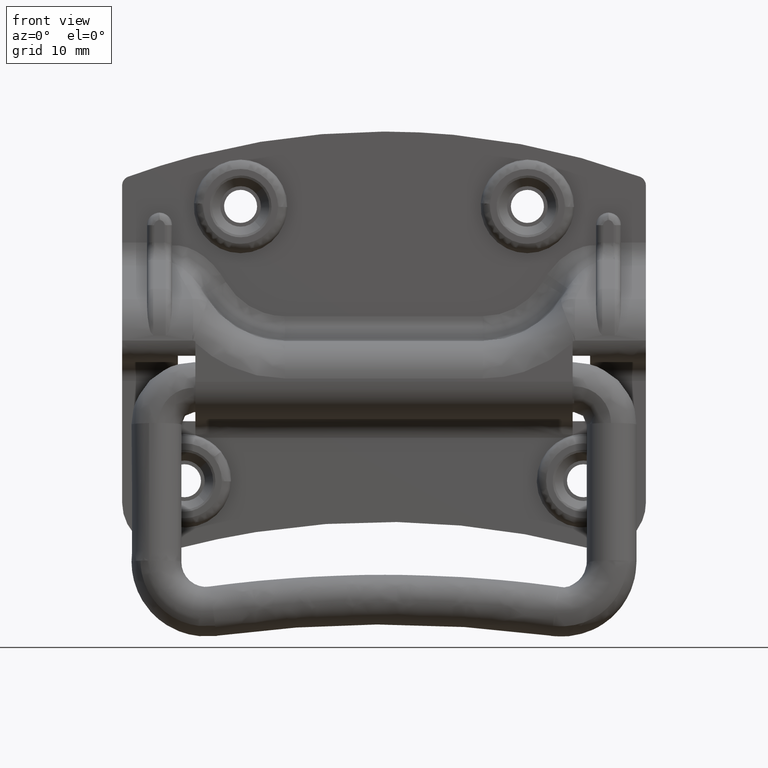
[diagram: clean part render]
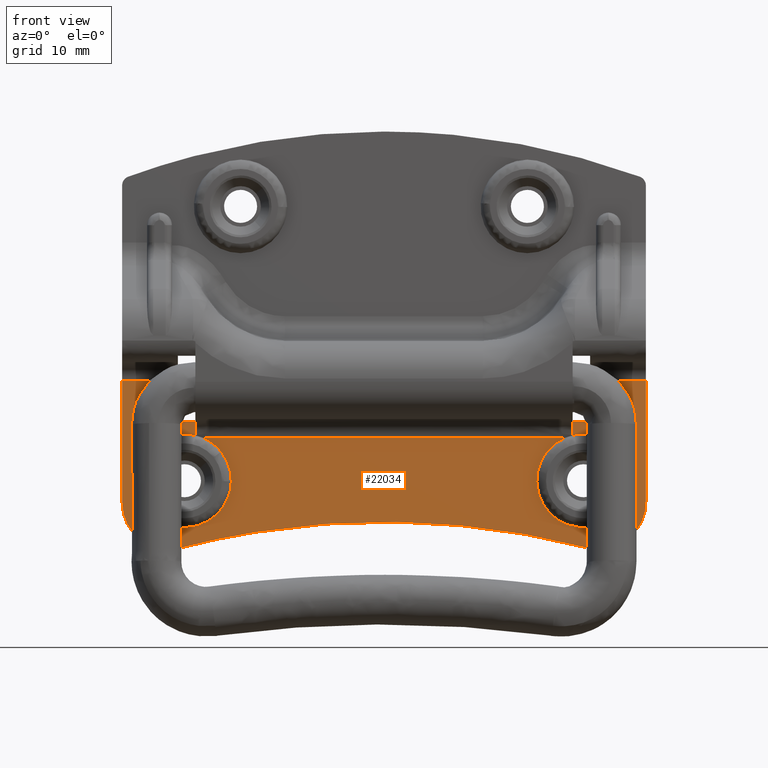
[diagram: same view with one face highlighted and labeled with its STEP entity id]
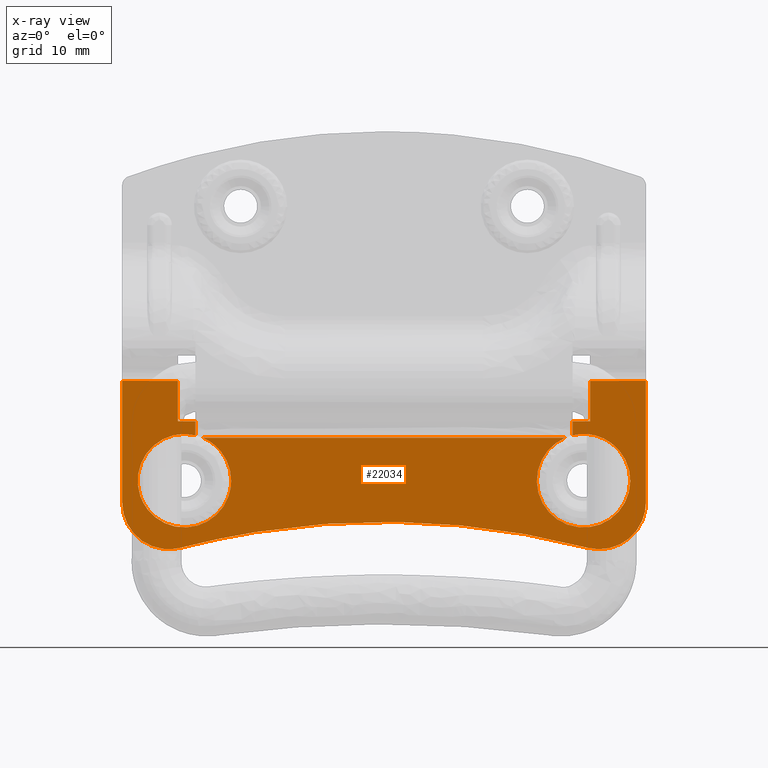
[diagram: x-ray of the same camera — body ghosted, the highlighted face saturated]
A machine part, front view. The second image highlights one B-rep face of the part: STEP entity #22034.
The next image is the same camera in x-ray: the body ghosted, the highlighted face saturated — about 0% of this face is hidden behind the body in this view.
In plain terms, the highlighted face is a freeform B-spline surface patch.
Its self-contained STEP definition (entity closure, byte-faithful):
#7285=CARTESIAN_POINT('',(-26.137685058992840,4.935899998863436,-10.322044941168921));
#7286=VERTEX_POINT('',#7285);
#7297=CARTESIAN_POINT('',(-29.060612308660350,4.935900000000000,-8.100000000000000));
#7298=VERTEX_POINT('',#7297);
#7299=CARTESIAN_POINT('',(-26.137685058992840,4.935899998863436,-10.322044941168921));
#7300=CARTESIAN_POINT('',(-26.450948569587389,4.935899999165022,-9.929387474775977));
#7301=CARTESIAN_POINT('',(-27.319612365203358,4.935899999768425,-9.040697086884704));
#7302=CARTESIAN_POINT('',(-28.385032488189321,4.935900000000430,-8.387428273835941));
#7303=CARTESIAN_POINT('',(-29.060612308660350,4.935900000000000,-8.100000000000000));
#7304=B_SPLINE_CURVE_WITH_KNOTS('',3,(#7299,#7300,#7301,#7302,#7303),.UNSPECIFIED.,.F.,.U.,(4,1,4),(0.000000018771408,1.506945767336172,3.709373404196398),.UNSPECIFIED.);
#7305=EDGE_CURVE('',#7286,#7298,#7304,.T.);
#7307=CARTESIAN_POINT('',(-30.249893012754551,4.935900000000100,-7.707049600251410));
#7308=VERTEX_POINT('',#7307);
#7316=CARTESIAN_POINT('',(-37.918678671612952,4.935900000000000,-19.606434931939660));
#7317=VERTEX_POINT('',#7316);
#7318=CARTESIAN_POINT('',(-30.249893012754551,4.935900000000100,-7.707049600251410));
#7319=CARTESIAN_POINT('',(-30.999703196167609,4.935900000000085,-7.526737837697844));
#7320=CARTESIAN_POINT('',(-32.166330051793608,4.935900000000106,-7.432271600693289));
#7321=CARTESIAN_POINT('',(-33.743659712877971,4.935900000000079,-7.670896851076519));
#7322=CARTESIAN_POINT('',(-34.986042485519192,4.935900000000088,-8.074245012554412));
#7323=CARTESIAN_POINT('',(-36.433341652711427,4.935900000000071,-8.859076490638513));
#7324=CARTESIAN_POINT('',(-37.694290157811700,4.935900000000043,-10.005986989589770));
#7325=CARTESIAN_POINT('',(-38.558382146908009,4.935900000000051,-11.292194271035671));
#7326=CARTESIAN_POINT('',(-39.179951615384532,4.935900000000054,-12.654613487926660));
#7327=CARTESIAN_POINT('',(-39.517041582160907,4.935900000000023,-14.124162959246361));
#7328=CARTESIAN_POINT('',(-39.507690239975943,4.935900000000018,-15.673675223043720));
#7329=CARTESIAN_POINT('',(-39.283425833201377,4.935900000000024,-16.910354094443889));
#7330=CARTESIAN_POINT('',(-38.824393874488237,4.935899999999956,-18.234949854725699));
#7331=CARTESIAN_POINT('',(-38.303647377126197,4.935900000000085,-19.112070853169900));
#7332=CARTESIAN_POINT('',(-37.918678671612952,4.935900000000000,-19.606434931939660));
#7333=B_SPLINE_CURVE_WITH_KNOTS('',3,(#7318,#7319,#7320,#7321,#7322,#7323,#7324,#7325,#7326,#7327,#7328,#7329,#7330,#7331,#7332),.UNSPECIFIED.,.F.,.U.,(4,1,1,1,1,1,1,1,1,1,1,1,4),(0.000000147355433,2.313427370048121,3.470222933412833,4.771562488840157,6.217499376539228,8.386423375454740,9.832269250406212,10.844436513093420,12.868717573107009,14.314677523999700,15.471451309252540,16.628160300210940,18.507857002783918),.UNSPECIFIED.);
#7334=EDGE_CURVE('',#7308,#7317,#7333,.T.);
#7336=CARTESIAN_POINT('',(-24.500592168471432,4.935899998827004,-15.094245299124751));
#7337=VERTEX_POINT('',#7336);
#7338=CARTESIAN_POINT('',(-37.918678671612952,4.935900000000000,-19.606434931939660));
#7339=CARTESIAN_POINT('',(-37.386301512178512,4.935899999782540,-20.291532866655839));
#7340=CARTESIAN_POINT('',(-36.370295805350288,4.935899999444435,-21.210230897292849));
#7341=CARTESIAN_POINT('',(-34.769641669754250,4.935899999038835,-22.015128113912539));
#7342=CARTESIAN_POINT('',(-33.515332053715419,4.935899998773643,-22.379714698490432));
#7343=CARTESIAN_POINT('',(-32.267360230945492,4.935899998552046,-22.528931905498741));
#7344=CARTESIAN_POINT('',(-31.059126724407509,4.935899998376729,-22.474691450165061));
#7345=CARTESIAN_POINT('',(-29.640339402100590,4.935899998217796,-22.174306759415810));
#7346=CARTESIAN_POINT('',(-28.349109719299260,4.935899998130431,-21.611312293335921));
#7347=CARTESIAN_POINT('',(-27.123978417184059,4.935899998112384,-20.748338052704941));
#7348=CARTESIAN_POINT('',(-26.029958293125901,4.935899998161249,-19.650999461422739));
#7349=CARTESIAN_POINT('',(-25.213381721608311,4.935899998297390,-18.326067544641809));
#7350=CARTESIAN_POINT('',(-24.648814414273740,4.935899998526177,-16.731091808609278));
#7351=CARTESIAN_POINT('',(-24.508277620557180,4.935899998704199,-15.720772294929709));
#7352=CARTESIAN_POINT('',(-24.500592168471432,4.935899998827004,-15.094245299124751));
#7353=B_SPLINE_CURVE_WITH_KNOTS('',3,(#7338,#7339,#7340,#7341,#7342,#7343,#7344,#7345,#7346,#7347,#7348,#7349,#7350,#7351,#7352),.UNSPECIFIED.,.F.,.U.,(4,1,1,1,1,1,1,1,1,1,1,1,4),(0.000000147377577,2.602616567147379,4.048567934755646,5.349924141980880,6.506646158297388,7.808015780196030,8.964733737845368,10.844389937533229,12.001098015869831,13.447050247613401,15.471384859497441,16.628088883486939,18.507777511982649),.UNSPECIFIED.);
#7354=EDGE_CURVE('',#7317,#7337,#7353,.T.);
#7440=CARTESIAN_POINT('',(-24.500592168471432,4.935899998827004,-15.094245299124751));
#7441=CARTESIAN_POINT('',(-24.492309079494621,4.935899999108911,-14.451084256050660));
#7442=CARTESIAN_POINT('',(-24.617829829365149,4.935899999410839,-13.377552192537010));
#7443=CARTESIAN_POINT('',(-25.176423493574571,4.935899999423296,-11.749192509023590));
#7444=CARTESIAN_POINT('',(-25.736352276354271,4.935899999136567,-10.824693874917690));
#7445=CARTESIAN_POINT('',(-26.137685058992840,4.935899998863436,-10.322044941168921));
#7446=B_SPLINE_CURVE_WITH_KNOTS('',3,(#7440,#7441,#7442,#7443,#7444,#7445),.UNSPECIFIED.,.F.,.U.,(4,1,1,4),(0.000000038709995,1.929589475588925,3.215950129809481,5.145539566688219),.UNSPECIFIED.);
#7447=EDGE_CURVE('',#7337,#7286,#7446,.T.);
#7862=CARTESIAN_POINT('',(33.847245339600292,4.935899998858411,-7.731046522688162));
#7863=VERTEX_POINT('',#7862);
#7874=CARTESIAN_POINT('',(30.250000000000000,4.935900000000000,-7.707023927092680));
#7875=VERTEX_POINT('',#7874);
#7876=CARTESIAN_POINT('',(33.847245339600292,4.935899998858411,-7.731046522688162));
#7877=CARTESIAN_POINT('',(33.150458660499240,4.935899999301849,-7.553631446215199));
#7878=CARTESIAN_POINT('',(31.933727535125879,4.935899999841782,-7.425936396410339));
#7879=CARTESIAN_POINT('',(30.728346083145791,4.935900000000103,-7.592187556218212));
#7880=CARTESIAN_POINT('',(30.250000000000000,4.935900000000000,-7.707023927092680));
#7881=B_SPLINE_CURVE_WITH_KNOTS('',3,(#7876,#7877,#7878,#7879,#7880),.UNSPECIFIED.,.F.,.U.,(4,1,4),(0.000000022739655,2.156945280828830,3.632767534996719),.UNSPECIFIED.);
#7882=EDGE_CURVE('',#7863,#7875,#7881,.T.);
#7884=CARTESIAN_POINT('',(29.060612308660350,4.935900000000090,-8.100000000000000));
#7885=VERTEX_POINT('',#7884);
#7893=CARTESIAN_POINT('',(27.825297979567960,4.935900000000000,-21.230719303627840));
#7894=VERTEX_POINT('',#7893);
#7895=CARTESIAN_POINT('',(29.060612308660350,4.935900000000090,-8.100000000000000));
#7896=CARTESIAN_POINT('',(28.674554764406910,4.935900000000292,-8.264435754148872));
#7897=CARTESIAN_POINT('',(27.855652917727731,4.935900000000692,-8.697708810508727));
#7898=CARTESIAN_POINT('',(26.666676142598639,4.935900000001278,-9.642059944766000));
#7899=CARTESIAN_POINT('',(25.522153652914341,4.935900000001745,-11.053334043673630));
#7900=CARTESIAN_POINT('',(24.846290074450689,4.935900000002191,-12.562188559242379));
#7901=CARTESIAN_POINT('',(24.546669223984150,4.935900000002057,-13.960469582716740));
#7902=CARTESIAN_POINT('',(24.471598338308400,4.935900000002063,-15.052030539844459));
#7903=CARTESIAN_POINT('',(24.578997159238060,4.935900000002074,-16.352174274745249));
#7904=CARTESIAN_POINT('',(25.013267499492031,4.935900000001617,-17.940286335214299));
#7905=CARTESIAN_POINT('',(26.043408337306609,4.935900000001058,-19.744136266650450));
#7906=CARTESIAN_POINT('',(27.162653289759390,4.935900000000437,-20.787236102432740));
#7907=CARTESIAN_POINT('',(27.825297979567960,4.935900000000000,-21.230719303627840));
#7908=B_SPLINE_CURVE_WITH_KNOTS('',3,(#7895,#7896,#7897,#7898,#7899,#7900,#7901,#7902,#7903,#7904,#7905,#7906,#7907),.UNSPECIFIED.,.F.,.U.,(4,1,1,1,1,1,1,1,1,1,4),(0.000000252806551,1.258870366350518,2.769630742294025,4.532167502553810,6.672414767877209,7.679577051674697,8.812484708094246,9.945564974706295,11.582188120074029,13.722421042489660,16.114364881628148),.UNSPECIFIED.);
#7909=EDGE_CURVE('',#7885,#7894,#7908,.T.);
#7911=CARTESIAN_POINT('',(39.499407831527861,4.935899998871337,-15.094245299180811));
#7912=VERTEX_POINT('',#7911);
#7913=CARTESIAN_POINT('',(27.825297979567960,4.935900000000000,-21.230719303627840));
#7914=CARTESIAN_POINT('',(28.173890408200482,4.935899999924810,-21.464297604179482));
#7915=CARTESIAN_POINT('',(29.057721646397180,4.935899999744312,-21.954549014948569));
#7916=CARTESIAN_POINT('',(30.669867521496229,4.935899999453582,-22.462274871126201));
#7917=CARTESIAN_POINT('',(32.403519191418823,4.935899999186090,-22.554403580169541));
#7918=CARTESIAN_POINT('',(34.188536336407303,4.935899998951246,-22.241738135935169));
#7919=CARTESIAN_POINT('',(35.631500423542832,4.935899998796932,-21.631665840304841));
#7920=CARTESIAN_POINT('',(36.798161742537133,4.935899998705758,-20.801591462346028));
#7921=CARTESIAN_POINT('',(37.734877189663550,4.935899998656437,-19.894638681003212));
#7922=CARTESIAN_POINT('',(38.624513477102340,4.935899998646527,-18.662502531133629));
#7923=CARTESIAN_POINT('',(39.316323921867550,4.935899998710884,-16.980397445391620));
#7924=CARTESIAN_POINT('',(39.491633259235932,4.935899998809842,-15.723660096147590));
#7925=CARTESIAN_POINT('',(39.499407831527861,4.935899998871337,-15.094245299180811));
#7926=B_SPLINE_CURVE_WITH_KNOTS('',3,(#7913,#7914,#7915,#7916,#7917,#7918,#7919,#7920,#7921,#7922,#7923,#7924,#7925),.UNSPECIFIED.,.F.,.U.,(4,1,1,1,1,1,1,1,1,1,4),(0.000000252807384,1.258866407143890,3.021434996563801,5.035748678053521,6.420602155864859,8.434756494499911,9.693725320503070,10.700899764658690,12.337527677498491,14.225937714341230,16.114314194454529),.UNSPECIFIED.);
#7927=EDGE_CURVE('',#7894,#7912,#7926,.T.);
#8017=CARTESIAN_POINT('',(39.499407831527861,4.935899998871337,-15.094245299180811));
#8018=CARTESIAN_POINT('',(39.507789481964373,4.935899999115189,-14.442663465398430));
#8019=CARTESIAN_POINT('',(39.387028113534832,4.935899999431696,-13.424668464464061));
#8020=CARTESIAN_POINT('',(38.925122030199063,4.935899999720285,-12.035950459779921));
#8021=CARTESIAN_POINT('',(38.233031544799260,4.935899999873170,-10.714675460374099));
#8022=CARTESIAN_POINT('',(37.276438384652408,4.935899999824578,-9.594570987377859));
#8023=CARTESIAN_POINT('',(35.791154120489388,4.935899999533851,-8.440340436241039));
#8024=CARTESIAN_POINT('',(34.681172343817593,4.935899999182423,-7.942255943079947));
#8025=CARTESIAN_POINT('',(33.847245339600292,4.935899998858411,-7.731046522688162));
#8026=B_SPLINE_CURVE_WITH_KNOTS('',3,(#8017,#8018,#8019,#8020,#8021,#8022,#8023,#8024,#8025),.UNSPECIFIED.,.F.,.U.,(4,1,1,1,1,1,4),(0.000000142365412,1.954842144861851,3.049565306369257,4.378883757798464,6.411871734946807,7.428416862327843,10.008814475369050),.UNSPECIFIED.);
#8027=EDGE_CURVE('',#7912,#7863,#8026,.T.);
#13923=CARTESIAN_POINT('',(33.049526746811352,4.935900000000000,-5.100000000000001));
#13924=VERTEX_POINT('',#13923);
#13945=CARTESIAN_POINT('',(33.049053493622750,4.935900000000000,-5.454248688935310));
#13946=VERTEX_POINT('',#13945);
#13955=CARTESIAN_POINT('',(33.049526746811352,4.935900000000000,-5.100000000000001));
#13956=CARTESIAN_POINT('',(33.049053493622750,4.935900000000000,-5.454248688935310));
#13957=QUASI_UNIFORM_CURVE('',1,(#13955,#13956),.UNSPECIFIED.,.F.,.U.);
#13958=EDGE_CURVE('',#13924,#13946,#13957,.T.);
#13968=CARTESIAN_POINT('',(-33.049419759565950,4.935900000000000,-5.100000000000001));
#13969=VERTEX_POINT('',#13968);
#13970=CARTESIAN_POINT('',(-33.048946506377263,4.935900000000000,-5.454248688935310));
#13971=VERTEX_POINT('',#13970);
#13972=CARTESIAN_POINT('',(-33.049419759565950,4.935900000000000,-5.100000000000001));
#13973=CARTESIAN_POINT('',(-33.048946506377263,4.935900000000000,-5.454248688935310));
#13974=QUASI_UNIFORM_CURVE('',1,(#13972,#13973),.UNSPECIFIED.,.F.,.U.);
#13975=EDGE_CURVE('',#13969,#13971,#13974,.T.);
#14289=CARTESIAN_POINT('',(-32.618178900347850,4.935900000000000,-25.759627965629150));
#14290=VERTEX_POINT('',#14289);
#14296=CARTESIAN_POINT('',(-41.999893012754548,4.935900000000000,-18.539608730369551));
#14297=VERTEX_POINT('',#14296);
#14298=CARTESIAN_POINT('',(-41.999893012754548,4.935900000000000,-18.539608730369551));
#14299=CARTESIAN_POINT('',(-41.996761810234162,4.935900000000001,-19.143584253019160));
#14300=CARTESIAN_POINT('',(-41.830186517571462,4.935899999999998,-20.457308176635060));
#14301=CARTESIAN_POINT('',(-41.108715843409691,4.935899999999996,-22.217246514677239));
#14302=CARTESIAN_POINT('',(-40.119761688065687,4.935900000000014,-23.531725021160241));
#14303=CARTESIAN_POINT('',(-38.884956650596017,4.935899999999942,-24.662223396776390));
#14304=CARTESIAN_POINT('',(-37.420460362451813,4.935900000000086,-25.502451720660531));
#14305=CARTESIAN_POINT('',(-35.587828434824978,4.935899999999982,-25.985848609405348));
#14306=CARTESIAN_POINT('',(-34.015192245927132,4.935899999999966,-26.033963946295842));
#14307=CARTESIAN_POINT('',(-33.030873921940760,4.935900000000059,-25.866609745274229));
#14308=CARTESIAN_POINT('',(-32.618178900347850,4.935900000000000,-25.759627965629150));
#14309=B_SPLINE_CURVE_WITH_KNOTS('',3,(#14298,#14299,#14300,#14301,#14302,#14303,#14304,#14305,#14306,#14307,#14308),.UNSPECIFIED.,.F.,.U.,(4,1,1,1,1,1,1,1,4),(0.000000250703883,1.811984365720752,3.943736909794319,5.649150168585496,6.715066419384997,8.953316131307391,10.658743728773979,12.364142300101960,13.643174712367340),.UNSPECIFIED.);
#14310=EDGE_CURVE('',#14297,#14290,#14309,.T.);
#14334=CARTESIAN_POINT('',(32.618184736015799,4.935900000000000,-25.759601747064099));
#14335=VERTEX_POINT('',#14334);
#14336=CARTESIAN_POINT('',(32.618184736015792,4.935900000000000,-25.759601747064099));
#14337=CARTESIAN_POINT('',(-0.000000480101927,4.935900000000000,-17.304957559707479));
#14338=CARTESIAN_POINT('',(-32.618178900347843,4.935900000000000,-25.759627965629171));
#14346=(BOUNDED_CURVE()B_SPLINE_CURVE(2,(#14336,#14337,#14338),.UNSPECIFIED.,.F.,.U.)CURVE()GEOMETRIC_REPRESENTATION_ITEM()QUASI_UNIFORM_CURVE()RATIONAL_B_SPLINE_CURVE((1.0,0.968010654951258,1.0))REPRESENTATION_ITEM(''));
#14347=EDGE_CURVE('',#14335,#14290,#14346,.T.);
#14405=CARTESIAN_POINT('',(42.0,4.935900000000000,-18.499521078625449));
#14406=VERTEX_POINT('',#14405);
#14412=CARTESIAN_POINT('',(32.618184736015799,4.935900000000000,-25.759601747064099));
#14413=CARTESIAN_POINT('',(33.308009272774328,4.935899999999994,-25.938693555815220));
#14414=CARTESIAN_POINT('',(34.452788644461293,4.935900000000007,-26.065911977289140));
#14415=CARTESIAN_POINT('',(36.193268101462813,4.935899999999999,-25.861380537319029));
#14416=CARTESIAN_POINT('',(37.894960297160253,4.935900000000000,-25.290885218883378));
#14417=CARTESIAN_POINT('',(39.447268786349873,4.935899999999996,-24.241519792711340));
#14418=CARTESIAN_POINT('',(40.541786780524440,4.935899999999998,-23.010338582609009));
#14419=CARTESIAN_POINT('',(41.212963058893394,4.935900000000007,-21.912512083856711));
#14420=CARTESIAN_POINT('',(41.813919142834600,4.935899999999998,-20.459123122662859));
#14421=CARTESIAN_POINT('',(42.000408886850607,4.935900000000003,-19.283508462125479));
#14422=CARTESIAN_POINT('',(42.0,4.935900000000000,-18.499521078625449));
#14423=B_SPLINE_CURVE_WITH_KNOTS('',3,(#14412,#14413,#14414,#14415,#14416,#14417,#14418,#14419,#14420,#14421,#14422),.UNSPECIFIED.,.F.,.U.,(4,1,1,1,1,1,1,1,4),(0.000000271007162,2.137992327314009,3.420809279048251,5.238130986219241,7.482950825972877,8.979586785902182,10.155520333686400,11.331433030164630,13.683229808951969),.UNSPECIFIED.);
#14424=EDGE_CURVE('',#14335,#14406,#14423,.T.);
#20881=CARTESIAN_POINT('',(33.049999999999997,4.935900000000090,1.0));
#20882=VERTEX_POINT('',#20881);
#20883=CARTESIAN_POINT('',(33.049526746811352,4.935900000000000,-5.100000000000001));
#20884=CARTESIAN_POINT('',(33.049999999999997,4.935900000000090,1.0));
#20885=QUASI_UNIFORM_CURVE('',1,(#20883,#20884),.UNSPECIFIED.,.F.,.U.);
#20886=EDGE_CURVE('',#13924,#20882,#20885,.T.);
#20969=CARTESIAN_POINT('',(-33.049893012754502,4.935900000000090,1.0));
#20970=VERTEX_POINT('',#20969);
#20982=CARTESIAN_POINT('',(-33.049419759565950,4.935900000000000,-5.100000000000001));
#20983=CARTESIAN_POINT('',(-33.049893012754502,4.935900000000090,1.0));
#20984=QUASI_UNIFORM_CURVE('',1,(#20982,#20983),.UNSPECIFIED.,.F.,.U.);
#20985=EDGE_CURVE('',#13969,#20970,#20984,.T.);
#21027=CARTESIAN_POINT('',(-41.999893012754548,4.935900000000000,1.0));
#21028=VERTEX_POINT('',#21027);
#21041=CARTESIAN_POINT('',(-33.049893012754502,4.935900000000090,1.0));
#21042=CARTESIAN_POINT('',(-41.999893012754548,4.935900000000000,1.0));
#21043=QUASI_UNIFORM_CURVE('',1,(#21041,#21042),.UNSPECIFIED.,.F.,.U.);
#21044=EDGE_CURVE('',#20970,#21028,#21043,.T.);
#21546=CARTESIAN_POINT('',(42.0,4.935900000000090,1.0));
#21547=VERTEX_POINT('',#21546);
#21548=CARTESIAN_POINT('',(42.0,4.935900000000090,1.0));
#21549=CARTESIAN_POINT('',(33.049999999999997,4.935900000000090,1.0));
#21550=QUASI_UNIFORM_CURVE('',1,(#21548,#21549),.UNSPECIFIED.,.F.,.U.);
#21551=EDGE_CURVE('',#21547,#20882,#21550,.T.);
#21639=CARTESIAN_POINT('',(-41.999893012754548,4.935900000000000,1.0));
#21640=CARTESIAN_POINT('',(-41.999893012754548,4.935900000000000,-18.539608730369551));
#21641=QUASI_UNIFORM_CURVE('',1,(#21639,#21640),.UNSPECIFIED.,.F.,.U.);
#21642=EDGE_CURVE('',#21028,#14297,#21641,.T.);
#21773=CARTESIAN_POINT('',(42.0,4.935900000000090,1.0));
#21774=CARTESIAN_POINT('',(42.0,4.935900000000000,-18.499521078625449));
#21775=QUASI_UNIFORM_CURVE('',1,(#21773,#21774),.UNSPECIFIED.,.F.,.U.);
#21776=EDGE_CURVE('',#21547,#14406,#21775,.T.);
#21816=CARTESIAN_POINT('',(30.250000000000000,4.935900000000000,-5.454248688935310));
#21817=VERTEX_POINT('',#21816);
#21818=CARTESIAN_POINT('',(30.250000000000000,4.935900000000000,-5.454248688935310));
#21819=CARTESIAN_POINT('',(30.250000000000000,4.935900000000000,-7.707023927092680));
#21820=QUASI_UNIFORM_CURVE('',1,(#21818,#21819),.UNSPECIFIED.,.F.,.U.);
#21821=EDGE_CURVE('',#21817,#7875,#21820,.T.);
#21848=CARTESIAN_POINT('',(-30.249893012754601,4.935900000000000,-5.454248688935310));
#21849=VERTEX_POINT('',#21848);
#21850=CARTESIAN_POINT('',(-30.249893012754601,4.935900000000000,-5.454248688935310));
#21851=CARTESIAN_POINT('',(-30.249893012754551,4.935900000000100,-7.707049600251410));
#21852=QUASI_UNIFORM_CURVE('',1,(#21850,#21851),.UNSPECIFIED.,.F.,.U.);
#21853=EDGE_CURVE('',#21849,#7308,#21852,.T.);
#21922=CARTESIAN_POINT('',(-30.249893012754601,4.935900000000000,-5.454248688935310));
#21923=CARTESIAN_POINT('',(-33.048946506377263,4.935900000000000,-5.454248688935310));
#21924=QUASI_UNIFORM_CURVE('',1,(#21922,#21923),.UNSPECIFIED.,.F.,.U.);
#21925=EDGE_CURVE('',#21849,#13971,#21924,.T.);
#21930=CARTESIAN_POINT('',(33.049053493622750,4.935900000000000,-5.454248688935310));
#21931=CARTESIAN_POINT('',(30.250000000000000,4.935900000000000,-5.454248688935310));
#21932=QUASI_UNIFORM_CURVE('',1,(#21930,#21931),.UNSPECIFIED.,.F.,.U.);
#21933=EDGE_CURVE('',#13946,#21817,#21932,.T.);
#21984=CARTESIAN_POINT('',(29.060612308660350,4.935900000000090,-8.100000000000000));
#21985=CARTESIAN_POINT('',(-29.060612308660350,4.935900000000000,-8.100000000000000));
#21986=QUASI_UNIFORM_CURVE('',1,(#21984,#21985),.UNSPECIFIED.,.F.,.U.);
#21987=EDGE_CURVE('',#7885,#7298,#21986,.T.);
#22003=CARTESIAN_POINT('',(-46.195688294464453,4.935900000000000,-27.347722910376781));
#22004=CARTESIAN_POINT('',(-46.195688294464453,4.935900000000000,2.348606569230809));
#22005=CARTESIAN_POINT('',(46.195796783745052,4.935900000000000,-27.347722910376781));
#22006=CARTESIAN_POINT('',(46.195796783745052,4.935900000000000,2.348606569230809));
#22007=B_SPLINE_SURFACE_WITH_KNOTS('',1,1,((#22003,#22005),(#22004,#22006)),.UNSPECIFIED.,.F.,.F.,.U.,(2,2),(2,2),(0.0,29.696329479607591),(0.0,92.391485078209485),.UNSPECIFIED.);
#22008=ORIENTED_EDGE('',*,*,#13958,.T.);
#22009=ORIENTED_EDGE('',*,*,#21933,.T.);
#22010=ORIENTED_EDGE('',*,*,#21821,.T.);
#22011=ORIENTED_EDGE('',*,*,#7882,.F.);
#22012=ORIENTED_EDGE('',*,*,#8027,.F.);
#22013=ORIENTED_EDGE('',*,*,#7927,.F.);
#22014=ORIENTED_EDGE('',*,*,#7909,.F.);
#22015=ORIENTED_EDGE('',*,*,#21987,.T.);
#22016=ORIENTED_EDGE('',*,*,#7305,.F.);
#22017=ORIENTED_EDGE('',*,*,#7447,.F.);
#22018=ORIENTED_EDGE('',*,*,#7354,.F.);
#22019=ORIENTED_EDGE('',*,*,#7334,.F.);
#22020=ORIENTED_EDGE('',*,*,#21853,.F.);
#22021=ORIENTED_EDGE('',*,*,#21925,.T.);
#22022=ORIENTED_EDGE('',*,*,#13975,.F.);
#22023=ORIENTED_EDGE('',*,*,#20985,.T.);
#22024=ORIENTED_EDGE('',*,*,#21044,.T.);
#22025=ORIENTED_EDGE('',*,*,#21642,.T.);
#22026=ORIENTED_EDGE('',*,*,#14310,.T.);
#22027=ORIENTED_EDGE('',*,*,#14347,.F.);
#22028=ORIENTED_EDGE('',*,*,#14424,.T.);
#22029=ORIENTED_EDGE('',*,*,#21776,.F.);
#22030=ORIENTED_EDGE('',*,*,#21551,.T.);
#22031=ORIENTED_EDGE('',*,*,#20886,.F.);
#22032=EDGE_LOOP('',(#22008,#22009,#22010,#22011,#22012,#22013,#22014,#22015,#22016,#22017,#22018,#22019,#22020,#22021,#22022,#22023,#22024,#22025,#22026,#22027,#22028,#22029,#22030,#22031));
#22033=FACE_OUTER_BOUND('',#22032,.T.);
#22034=ADVANCED_FACE('',(#22033),#22007,.F.);